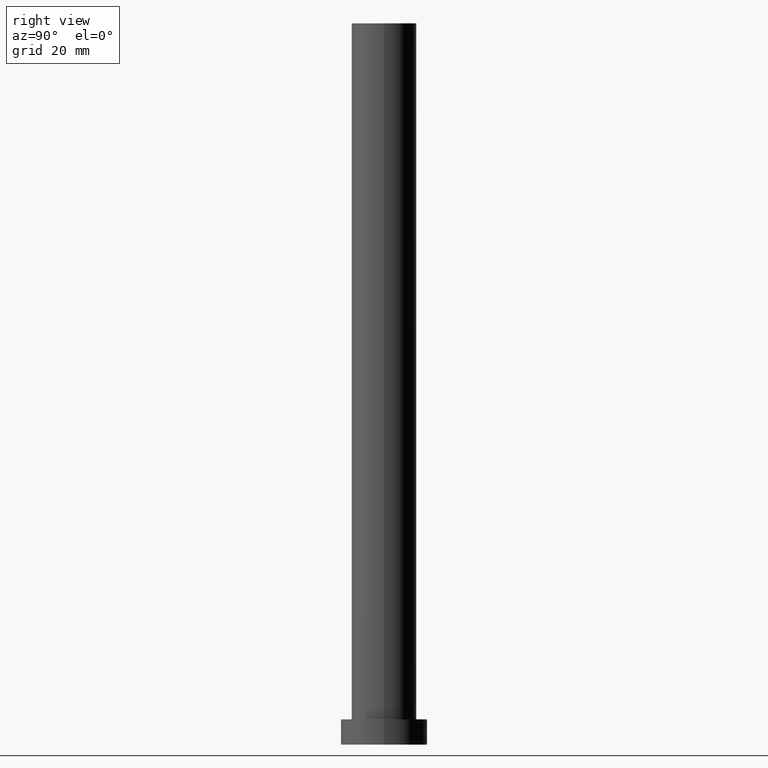
[diagram: clean part render]
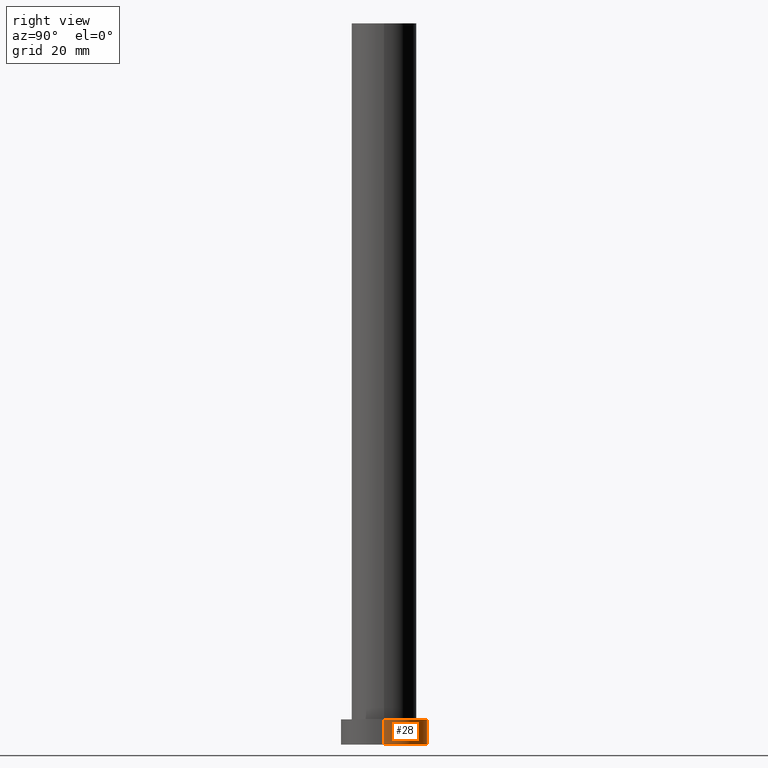
[diagram: same view with one face highlighted and labeled with its STEP entity id]
A machine part, right view. The second image highlights one B-rep face of the part: STEP entity #28.
In plain terms, the highlighted cylindrical surface (partial cylindrical patch) has radius 12 mm, axis along (-0, -0, -1).
Its self-contained STEP definition (entity closure, byte-faithful):
#4 = VERTEX_POINT ( 'NONE', #147 ) ;
#6 = EDGE_CURVE ( 'NONE', #131, #170, #41, .T. ) ;
#8 = ORIENTED_EDGE ( 'NONE', *, *, #43, .F. ) ;
#13 = DIRECTION ( 'NONE',  ( -0.000000000000000000, -0.000000000000000000, -1.000000000000000000 ) ) ;
#21 = DIRECTION ( 'NONE',  ( 1.000000000000000000, 0.000000000000000000, 0.000000000000000000 ) ) ;
#23 = CARTESIAN_POINT ( 'NONE',  ( -12.00000000000000178, 0.000000000000000000, 7.000000000000000000 ) ) ;
#24 = ORIENTED_EDGE ( 'NONE', *, *, #160, .F. ) ;
#27 = ORIENTED_EDGE ( 'NONE', *, *, #87, .T. ) ;
#28 = ADVANCED_FACE ( 'NONE', ( #142 ), #37, .T. ) ;
#32 = EDGE_LOOP ( 'NONE', ( #24, #27, #89, #8 ) ) ;
#33 = DIRECTION ( 'NONE',  ( -1.000000000000000000, 0.000000000000000000, 0.000000000000000000 ) ) ;
#34 = DIRECTION ( 'NONE',  ( 1.000000000000000000, 0.000000000000000000, 0.000000000000000000 ) ) ;
#35 = CARTESIAN_POINT ( 'NONE',  ( 0.000000000000000000, 0.000000000000000000, 7.000000000000000000 ) ) ;
#37 = CYLINDRICAL_SURFACE ( 'NONE', #103, 12.00000000000000178 ) ;
#41 = CIRCLE ( 'NONE', #73, 12.00000000000000178 ) ;
#43 = EDGE_CURVE ( 'NONE', #241, #170, #116, .T. ) ;
#51 = CARTESIAN_POINT ( 'NONE',  ( -12.00000000000000178, 0.000000000000000000, 0.000000000000000000 ) ) ;
#73 = AXIS2_PLACEMENT_3D ( 'NONE', #126, #201, #21 ) ;
#87 = EDGE_CURVE ( 'NONE', #4, #131, #121, .T. ) ;
#89 = ORIENTED_EDGE ( 'NONE', *, *, #6, .T. ) ;
#97 = DIRECTION ( 'NONE',  ( -0.000000000000000000, -0.000000000000000000, -1.000000000000000000 ) ) ;
#103 = AXIS2_PLACEMENT_3D ( 'NONE', #35, #212, #33 ) ;
#116 = LINE ( 'NONE', #250, #136 ) ;
#118 = VECTOR ( 'NONE', #97, 1000.000000000000000 ) ;
#121 = LINE ( 'NONE', #162, #118 ) ;
#126 = CARTESIAN_POINT ( 'NONE',  ( 0.000000000000000000, 0.000000000000000000, 0.000000000000000000 ) ) ;
#131 = VERTEX_POINT ( 'NONE', #143 ) ;
#136 = VECTOR ( 'NONE', #13, 1000.000000000000000 ) ;
#142 = FACE_OUTER_BOUND ( 'NONE', #32, .T. ) ;
#143 = CARTESIAN_POINT ( 'NONE',  ( 12.00000000000000178, 1.469576158976824144E-15, 0.000000000000000000 ) ) ;
#147 = CARTESIAN_POINT ( 'NONE',  ( 12.00000000000000178, 1.469576158976824144E-15, 7.000000000000000000 ) ) ;
#160 = EDGE_CURVE ( 'NONE', #4, #241, #182, .T. ) ;
#162 = CARTESIAN_POINT ( 'NONE',  ( 12.00000000000000178, 1.469576158976824144E-15, 7.000000000000000000 ) ) ;
#170 = VERTEX_POINT ( 'NONE', #51 ) ;
#175 = CARTESIAN_POINT ( 'NONE',  ( 0.000000000000000000, 0.000000000000000000, 7.000000000000000000 ) ) ;
#182 = CIRCLE ( 'NONE', #214, 12.00000000000000178 ) ;
#197 = DIRECTION ( 'NONE',  ( 0.000000000000000000, 0.000000000000000000, 1.000000000000000000 ) ) ;
#201 = DIRECTION ( 'NONE',  ( 0.000000000000000000, 0.000000000000000000, 1.000000000000000000 ) ) ;
#212 = DIRECTION ( 'NONE',  ( -0.000000000000000000, -0.000000000000000000, -1.000000000000000000 ) ) ;
#214 = AXIS2_PLACEMENT_3D ( 'NONE', #175, #197, #34 ) ;
#241 = VERTEX_POINT ( 'NONE', #23 ) ;
#250 = CARTESIAN_POINT ( 'NONE',  ( -12.00000000000000178, 0.000000000000000000, 7.000000000000000000 ) ) ;